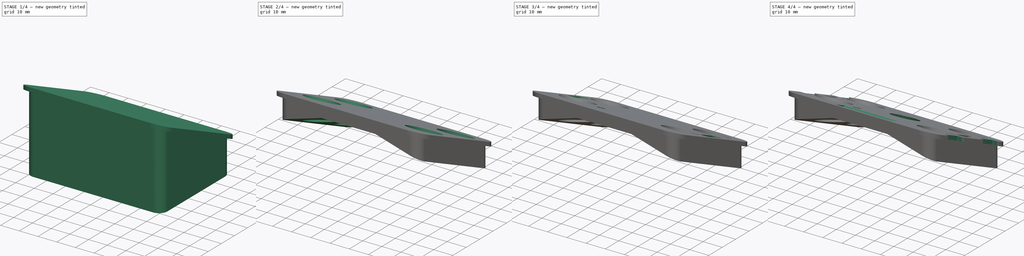
[diagram: build sequence overview — one tinted view per stage of 4, left to right]
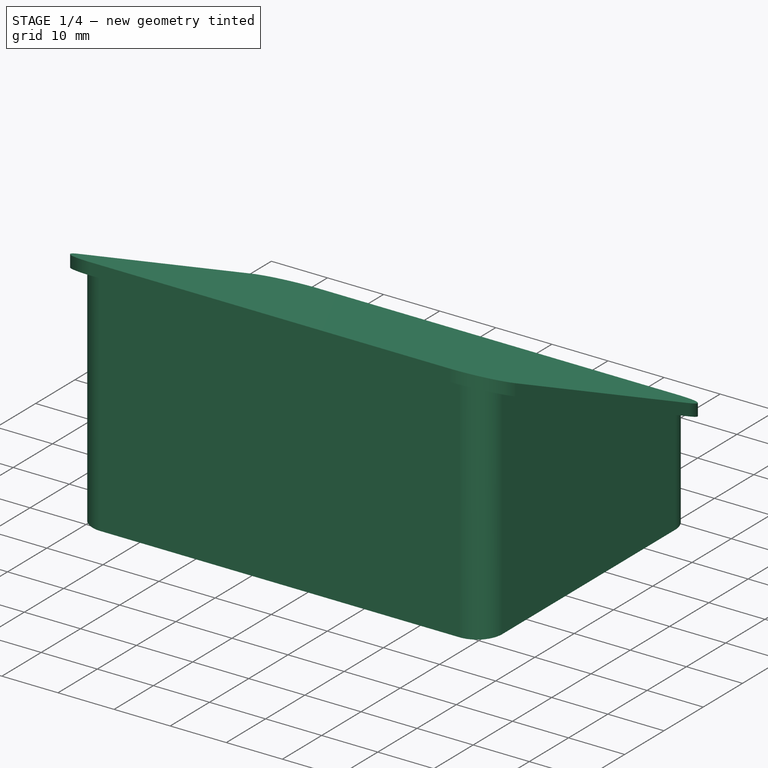
[diagram: stage 1 of 4 — iso view after this stage's code; geometry added in this stage tinted green]
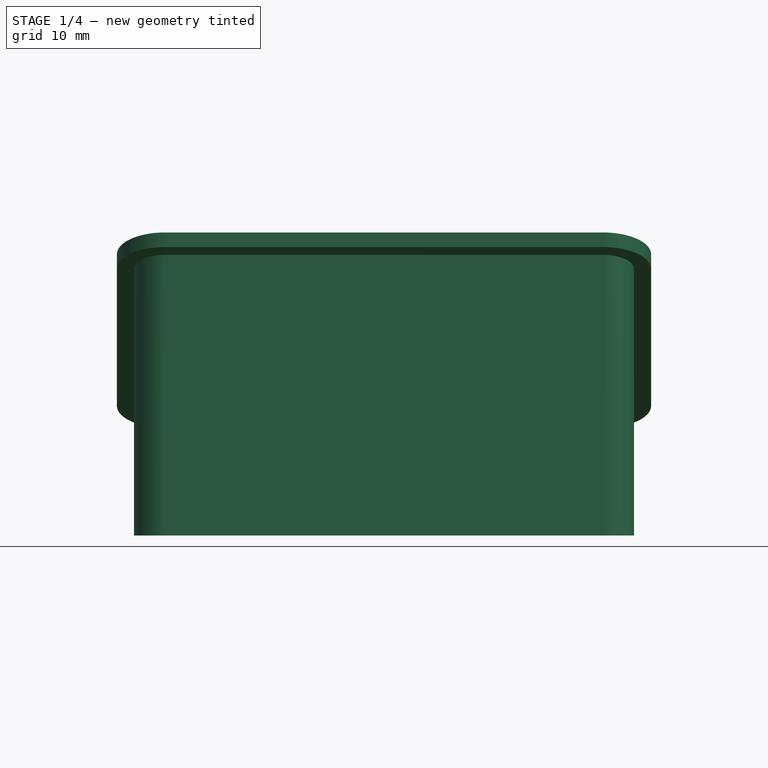
[diagram: stage 1 of 4 — front view after this stage's code; geometry added in this stage tinted green]
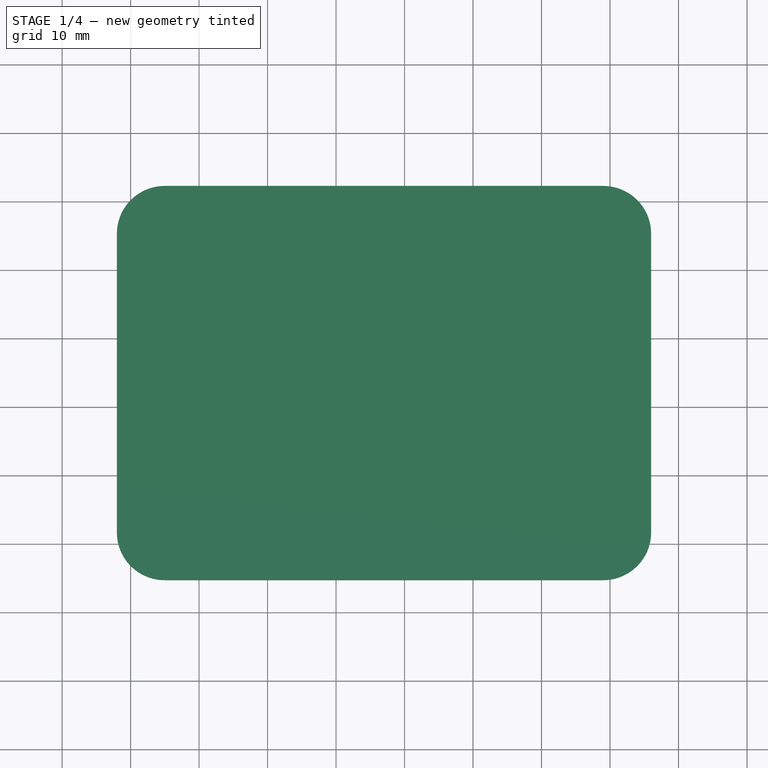
[diagram: stage 1 of 4 — top view after this stage's code; geometry added in this stage tinted green]
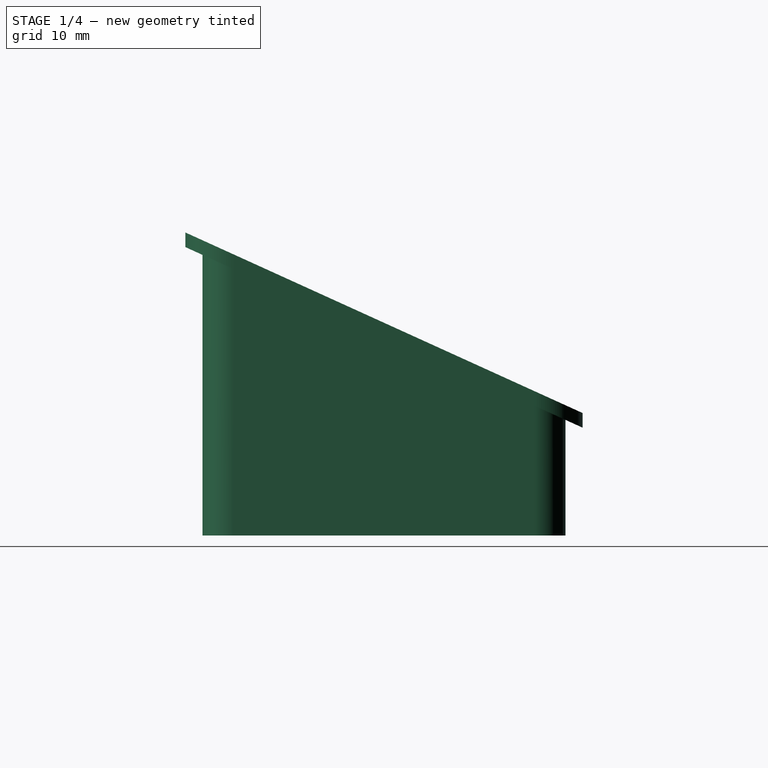
[diagram: stage 1 of 4 — right view after this stage's code; geometry added in this stage tinted green]
FCSTD DOCUMENT  (FreeCAD 0.18R4 (GitTag))
Label: sensormount_esp32_cam
License: CreativeCommons Attribution-NonCommercial
LicenseURL: http://creativecommons.org/licenses/by-nc/4.0/
objects: Sketcher::SketchObject×15, PartDesign::Pocket×9, PartDesign::Pad×2, PartDesign::SubtractiveLoft×2, PartDesign::Plane×1, PartDesign::Fillet×1, PartDesign::Body×1, App::Part×1
note: 44 computed .brp shape members not serialized (recipe doc carries the construction recipe); baked Part::Feature solids carry a one-line shape summary decoded from their .brp

FEATURE [Sketcher::SketchObject] Sketch319
  MapMode = 5
  Support = -> [XY_Plane126]
  sketch-geometry (8):
    g0: ArcOfCircle CenterX=25 CenterY=11 CenterZ=0 NormalX=0 NormalY=0 NormalZ=1 AngleXU=0 Radius=4.5 StartAngle=3.14159 EndAngle=4.71239
    g1: ArcOfCircle CenterX=25 CenterY=55 CenterZ=0 NormalX=0 NormalY=0 NormalZ=1 AngleXU=0 Radius=4.5 StartAngle=1.5708 EndAngle=3.14159
    g2: ArcOfCircle CenterX=89 CenterY=55 CenterZ=0 NormalX=0 NormalY=0 NormalZ=1 AngleXU=0 Radius=4.5 StartAngle=7e-16 EndAngle=1.5708
    g3: ArcOfCircle CenterX=89 CenterY=11 CenterZ=0 NormalX=0 NormalY=0 NormalZ=1 AngleXU=0 Radius=4.5 StartAngle=4.71239 EndAngle=6.28319
    g4: LineSegment StartX=25 StartY=59.5 StartZ=0 EndX=89 EndY=59.5 EndZ=0
    g5: LineSegment StartX=20.5 StartY=55 StartZ=0 EndX=20.5 EndY=11 EndZ=0
    g6: LineSegment StartX=25 StartY=6.5 StartZ=0 EndX=89 EndY=6.5 EndZ=0
    g7: LineSegment StartX=93.5 StartY=11 StartZ=0 EndX=93.5 EndY=55 EndZ=0
  constraints (20):
    c: Horizontal(g4)
    c: Vertical(g5)
    c: Horizontal(g6)
    c: Vertical(g7)
    c: Equal(g1,g2)
    c: Equal(g2,g3)
    c: Equal(g3,g0)
    c: Radius(g2) = 4.5
    c: Tangent(g7,g2) = -1.5708
    c: Tangent(g1,g4) = 1.5708
    c: Tangent(g5,g1) = -1.5708
    c: Tangent(g4,g2) = 1.5708
    c: Tangent(g7,g3) = -1.5708
    c: Tangent(g6,g3) = -1.5708
    c: Tangent(g5,g0) = -1.5708
    c: Tangent(g6,g0) = -1.5708
    c: DistanceX(g4,g4) = 64
    c: DistanceY(g7,g7) = 44
    c: DistanceX(g-1,g0) = 25
    c: DistanceY(g-1,g0) = 11
FEATURE [Sketcher::SketchObject] Sketch318
  AttachmentOffset = pos=(0,0,44.25) rot=(0,0,1;0rad)
  MapMode = 5
  Placement = pos=(0,0,44.25) rot=(0,0,1;0rad)
  Support = -> [XY_Plane126]
  sketch-geometry (8):
    g0: LineSegment StartX=25 StartY=4 StartZ=0 EndX=89 EndY=4 EndZ=0
    g1: LineSegment StartX=96 StartY=11 StartZ=0 EndX=96 EndY=55 EndZ=0
    g2: LineSegment StartX=89 StartY=62 StartZ=0 EndX=25 EndY=62 EndZ=0
    g3: LineSegment StartX=18 StartY=55 StartZ=0 EndX=18 EndY=11 EndZ=0
    g4: ArcOfCircle CenterX=25 CenterY=55 CenterZ=0 NormalX=0 NormalY=0 NormalZ=1 AngleXU=0 Radius=7 StartAngle=1.5708 EndAngle=3.14159
    g5: ArcOfCircle CenterX=89 CenterY=55 CenterZ=0 NormalX=0 NormalY=0 NormalZ=1 AngleXU=0 Radius=7 StartAngle=0 EndAngle=1.5708
    g6: ArcOfCircle CenterX=89 CenterY=11 CenterZ=0 NormalX=0 NormalY=0 NormalZ=1 AngleXU=0 Radius=7 StartAngle=4.71239 EndAngle=6.28319
    g7: ArcOfCircle CenterX=25 CenterY=11 CenterZ=0 NormalX=0 NormalY=0 NormalZ=1 AngleXU=0 Radius=7 StartAngle=3.14159 EndAngle=4.71239
  constraints (20):
    c: Horizontal(g0)
    c: Horizontal(g2)
    c: Vertical(g1)
    c: Vertical(g3)
    c: Tangent(g3,g4) = -1.5708
    c: Tangent(g2,g4) = -1.5708
    c: Tangent(g2,g5) = -1.5708
    c: Tangent(g1,g5) = -1.5708
    c: Tangent(g1,g6) = -1.5708
    c: Tangent(g0,g6) = -1.5708
    c: Tangent(g0,g7) = -1.5708
    c: Tangent(g3,g7) = -1.5708
    c: Radius(g4) = 7
    c: Equal(g4,g5)
    c: Equal(g5,g6)
    c: Equal(g6,g7)
    c: DistanceX(g3,g1) = 78
    c: DistanceY(g0,g2) = 58
    c: DistanceX(g-1,g7) = 25
    c: DistanceY(g-1,g7) = 11
FEATURE [Sketcher::SketchObject] Sketch329
  AttachmentOffset = pos=(0,0,14) rot=(0,0,1;0rad)
  MapMode = 5
  Placement = pos=(0,0,14) rot=(0,0,1;0rad)
  Support = -> [XY_Plane126]
  sketch-geometry (1):
    g0: Circle CenterX=57 CenterY=38.5 CenterZ=0 NormalX=0 NormalY=0 NormalZ=1 AngleXU=0 Radius=12
  constraints (3):
    c: Radius(g0) = 12
    c: DistanceX(g-1,g0) = 57
    c: DistanceY(g-1,g0) = 38.5
FEATURE [Sketcher::SketchObject] Sketch326
  AttachmentOffset = pos=(0,0,-8) rot=(0,0,1;0rad)
  MapMode = 5
  Placement = pos=(0,8,1.8e-15) rot=(1,0,0;1.5708rad)
  Support = -> [XZ_Plane126]
  sketch-geometry (5):
    g0: LineSegment StartX=43 StartY=44.3 StartZ=0 EndX=43 EndY=39.3 EndZ=0
    g1: LineSegment StartX=43 StartY=39.3 StartZ=0 EndX=71 EndY=39.3 EndZ=0
    g2: LineSegment StartX=71 StartY=39.3 StartZ=0 EndX=71 EndY=44.3 EndZ=0
    g3: LineSegment StartX=71 StartY=44.3 StartZ=0 EndX=43 EndY=44.3 EndZ=0
    g4: LineSegment [constr] StartX=57 StartY=44.3 StartZ=0 EndX=57 EndY=39.3 EndZ=0
  constraints (15):
    c: Vertical(g0)
    c: Coincident(g0,g1)
    c: Horizontal(g1)
    c: Coincident(g1,g2)
    c: Vertical(g2)
    c: Coincident(g3,g0)
    c: Horizontal(g3)
    c: Symmetric(g0,g1,g4)
    c: DistanceX(g-1,g4) = 57
    c: DistanceY(g-1,g4) = 39.3
    c: DistanceX(g1,g1) = 28
    c: DistanceY(g0,g0) = 5
    c: Coincident(g3,g2)
    c: Perpendicular(g3,g4)
    c: PointOnObject(g4,g3)
FEATURE [Sketcher::SketchObject] Sketch324
  AttachmentOffset = pos=(0,0,28) rot=(0,0,1;0rad)
  MapMode = 5
  Placement = pos=(0,0,28) rot=(0,0,1;0rad)
  Support = -> [XY_Plane126]
  sketch-geometry (1):
    g0: Circle CenterX=45.5 CenterY=20 CenterZ=0 NormalX=0 NormalY=0 NormalZ=1 AngleXU=0 Radius=5
  constraints (3):
    c: DistanceX(g-1,g0) = 45.5
    c: DistanceY(g-1,g0) = 20
    c: Radius(g0) = 5
FEATURE [Sketcher::SketchObject] Sketch325
  AttachmentOffset = pos=(0,0,38.6) rot=(0,0,1;0rad)
  MapMode = 5
  Placement = pos=(0,0,38.6) rot=(0,0,1;0rad)
  Support = -> [XY_Plane126]
  sketch-geometry (1):
    g0: Circle CenterX=45.5 CenterY=20 CenterZ=0 NormalX=0 NormalY=0 NormalZ=1 AngleXU=0 Radius=1.25
  constraints (3):
    c: DistanceX(g-1,g0) = 45.5
    c: DistanceY(g-1,g0) = 20
    c: Radius(g0) = 1.25
FEATURE [Sketcher::SketchObject] Sketch328
  AttachmentOffset = pos=(0,0,35.1) rot=(0,0,1;0rad)
  MapMode = 5
  Placement = pos=(0,0,35.1) rot=(0,0,1;0rad)
  Support = -> [XY_Plane126]
  sketch-geometry (1):
    g0: Circle CenterX=57 CenterY=38.5 CenterZ=0 NormalX=0 NormalY=0 NormalZ=1 AngleXU=0 Radius=4
  constraints (3):
    c: Radius(g0) = 4
    c: DistanceX(g-1,g0) = 57
    c: DistanceY(g-1,g0) = 38.5
FEATURE [PartDesign::Pad] Pad125  label="Baseblock"
  Length = 28.5
  Length2 = 100
  Profile = -> Sketch318
  Reversed = true
  Type = 0
FEATURE [Sketcher::SketchObject] Sketch314
  MapMode = 5
  Placement = pos=(18,0,0) rot=(0.57735,-0.57735,-0.57735;2.0944rad)
  Support = -> [Pad125]
  sketch-geometry (6):
    g0: LineSegment StartX=-62 StartY=15.75 StartZ=0 EndX=-4 EndY=42.1137 EndZ=0
    g1: LineSegment StartX=-4 StartY=42.1137 StartZ=0 EndX=-4 EndY=15.75 EndZ=0
    g2: LineSegment StartX=-4 StartY=15.75 StartZ=0 EndX=-62 EndY=15.75 EndZ=0
    g3: LineSegment StartX=-62 StartY=17.8863 StartZ=0 EndX=-4 EndY=44.25 EndZ=0
    g4: LineSegment StartX=-4 StartY=44.25 StartZ=0 EndX=-62 EndY=44.25 EndZ=0
    g5: LineSegment StartX=-62 StartY=44.25 StartZ=0 EndX=-62 EndY=17.8863 EndZ=0
  constraints (18):
    c: Coincident(g0,g1)
    c: Vertical(g1)
    c: Coincident(g1,g2)
    c: Coincident(g2,g0)
    c: Horizontal(g2)
    c: Coincident(g3,g4)
    c: Horizontal(g4)
    c: Coincident(g4,g5)
    c: Coincident(g5,g3)
    c: Vertical(g5)
    c: Parallel(g0,g3)
    c: Vertical(g0,g3)
    c: Vertical(g3,g0)
    c: Angle(g2,g0) = 0.426628
    c: DistanceX(g4,g4) = 58
    c: DistanceY(g1,g3) = 28.5
    c: DistanceX(g1,g-1) = 4
    c: DistanceY(g-1,g1) = 15.75
FEATURE [PartDesign::Pocket] Pocket148  label="Tilt Baseplate"
  BaseFeature = -> Pad125
  Length = 80
  Length2 = 100
  Profile = -> Sketch314
  Type = 0
FEATURE [PartDesign::Pad] Pad124  label="Extend Baseplate"
  BaseFeature = -> Pocket148
  Length = 44
  Length2 = 100
  Profile = -> Sketch319
  Type = 0
FEATURE [Sketcher::SketchObject] Sketch313
  ExternalGeometry = -> [Pad124]
  MapMode = 5
  Placement = pos=(93.5,0,0) rot=(0.57735,0.57735,0.57735;2.0944rad)
  Support = -> [Pad124]
  sketch-geometry (4):
    g0: LineSegment StartX=6.5 StartY=43.1136 StartZ=0 EndX=59.5 EndY=19.0227 EndZ=0
    g1: LineSegment StartX=59.5 StartY=19.0227 StartZ=0 EndX=59.5 EndY=44 EndZ=0
    g2: LineSegment StartX=59.5 StartY=44 StartZ=0 EndX=6.5 EndY=44 EndZ=0
    g3: LineSegment StartX=6.5 StartY=44 StartZ=0 EndX=6.5 EndY=43.1136 EndZ=0
  constraints (10):
    c: Coincident(g0,g1)
    c: Vertical(g1)
    c: Coincident(g1,g2)
    c: Horizontal(g2)
    c: Coincident(g2,g3)
    c: Coincident(g3,g0)
    c: Parallel(g0,g-3)
    c: DistanceX(g2,g2) = 53
    c: Coincident(g2,g-4)
    c: Coincident(g0,g-4)
FEATURE [PartDesign::Pocket] Pocket149  label="Remove Baseplate"
  BaseFeature = -> Pad124
  Length = 80
  Length2 = 100
  Profile = -> Sketch313
  Type = 0
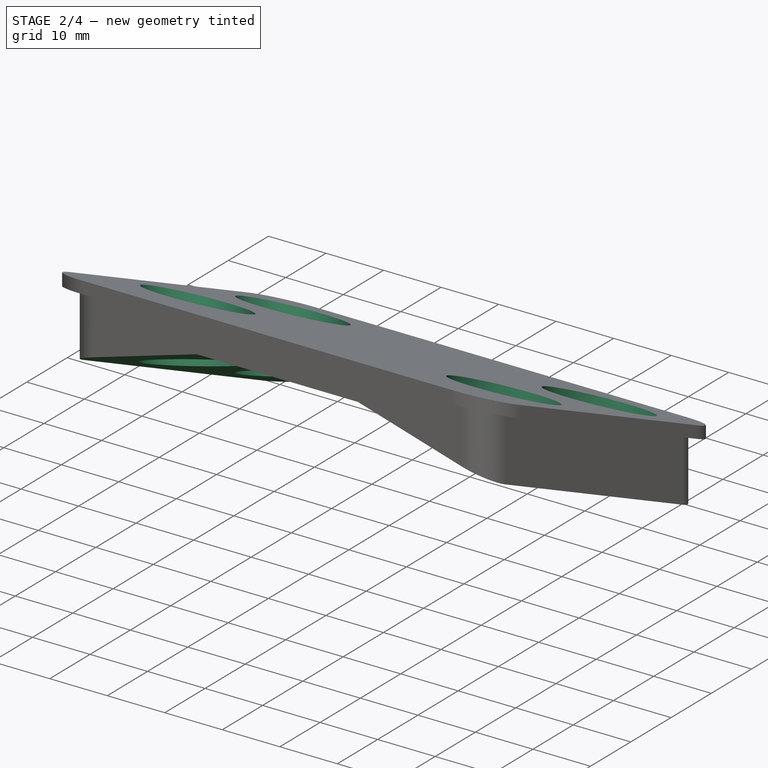
[diagram: stage 2 of 4 — iso view after this stage's code; geometry added in this stage tinted green]
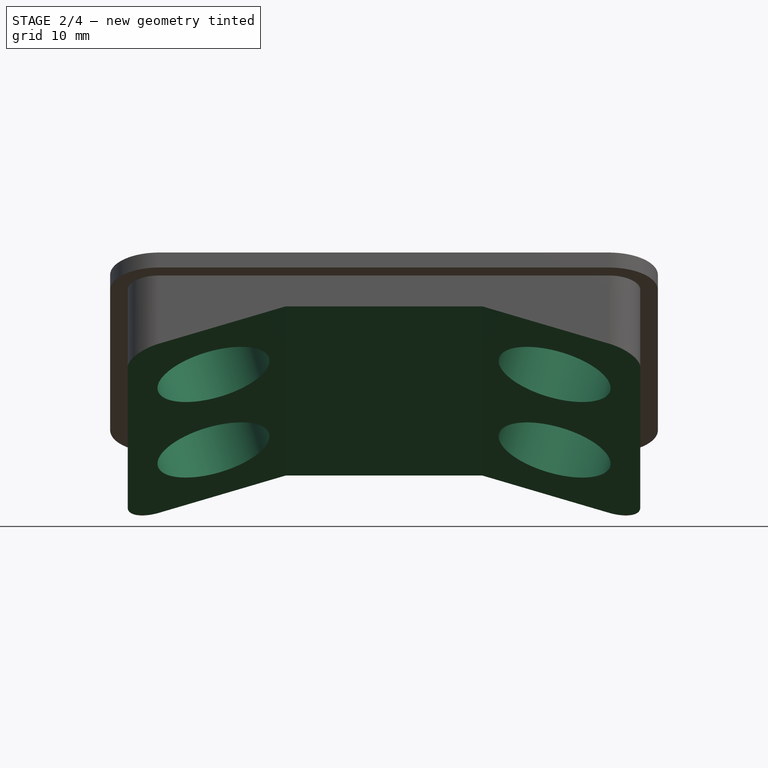
[diagram: stage 2 of 4 — front view after this stage's code; geometry added in this stage tinted green]
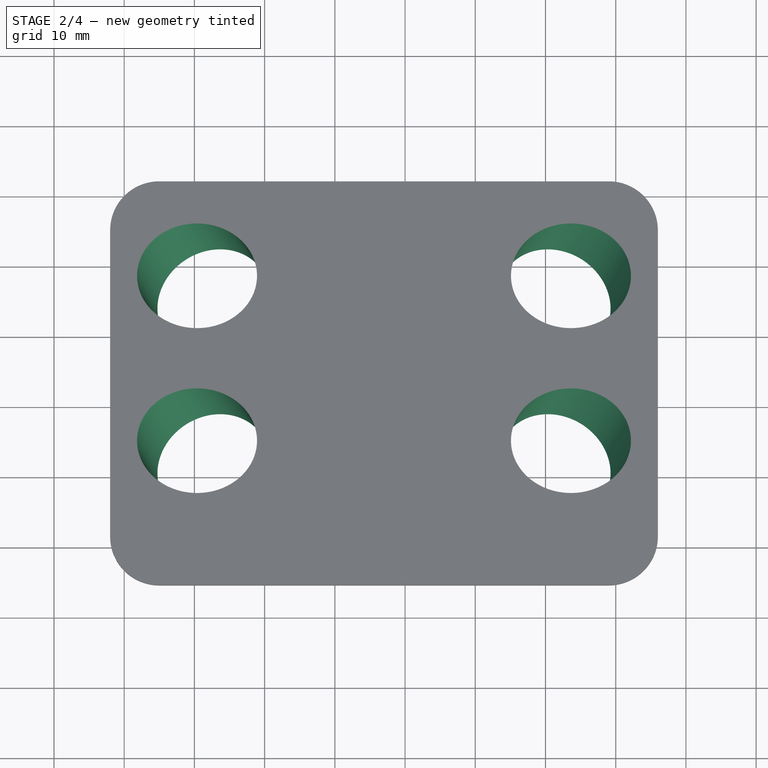
[diagram: stage 2 of 4 — top view after this stage's code; geometry added in this stage tinted green]
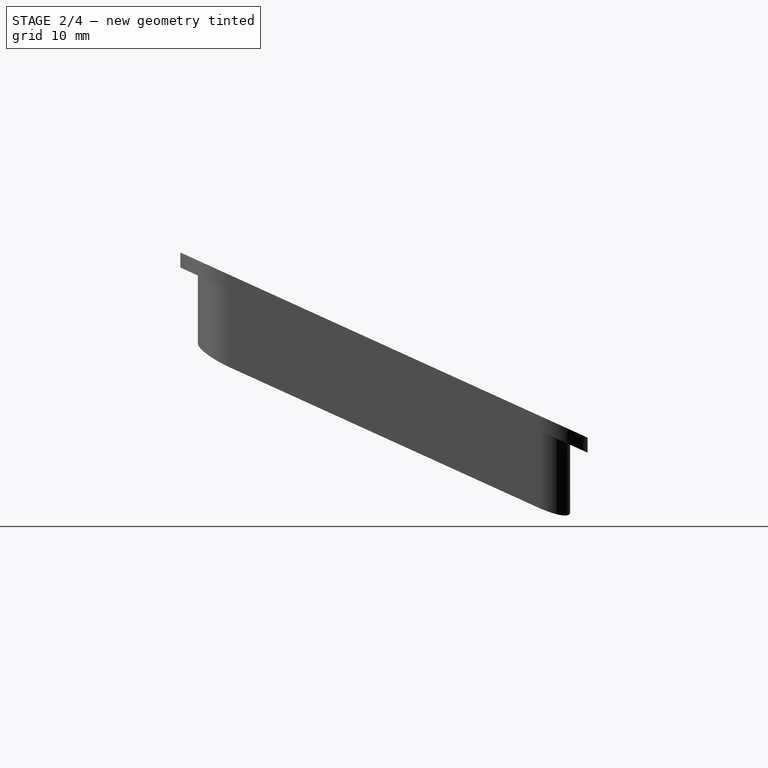
[diagram: stage 2 of 4 — right view after this stage's code; geometry added in this stage tinted green]
FEATURE [PartDesign::Plane] DatumPlane013  label="Plane along tilt"
  Length = 124.323
  MapMode = 7
  Placement = pos=(96,11,38.9319) rot=(1,0,0;1.14417rad)
  ResizeMode = 0
  Support = -> [Pocket149]
  Width = 97.5041
FEATURE [Sketcher::SketchObject] Sketch321
  MapMode = 5
  Placement = pos=(96,11,38.9319) rot=(1,0,0;1.14417rad)
  Support = -> [DatumPlane013]
  sketch-geometry (6):
    g0: LineSegment StartX=-75.5 StartY=-10.0289 StartZ=0 EndX=-53 EndY=-4 EndZ=0
    g1: LineSegment StartX=-53 StartY=-4 StartZ=0 EndX=-25 EndY=-4 EndZ=0
    g2: LineSegment StartX=-25 StartY=-4 StartZ=0 EndX=-2.5 EndY=-10.0289 EndZ=0
    g3: LineSegment StartX=-2.5 StartY=-10.0289 StartZ=0 EndX=-2.5 EndY=-38 EndZ=0
    g4: LineSegment StartX=-2.5 StartY=-38 StartZ=0 EndX=-75.5 EndY=-38 EndZ=0
    g5: LineSegment StartX=-75.5 StartY=-38 StartZ=0 EndX=-75.5 EndY=-10.0289 EndZ=0
  constraints (18):
    c: Coincident(g0,g1)
    c: Horizontal(g1)
    c: Coincident(g1,g2)
    c: Coincident(g2,g3)
    c: Vertical(g3)
    c: Coincident(g3,g4)
    c: Horizontal(g4)
    c: Coincident(g4,g5)
    c: Coincident(g5,g0)
    c: Vertical(g5)
    c: DistanceX(g4,g4) = 73
    c: DistanceX(g2,g-1) = 2.5
    c: Equal(g2,g0)
    c: Angle(g5,g0) = 1.8326
    c: Equal(g5,g3)
    c: DistanceY(g3,g-1) = 38
    c: DistanceX(g1,g1) = 28
    c: DistanceY(g1,g-1) = 4
FEATURE [PartDesign::Pocket] Pocket153  label="Tilt Sensors"
  BaseFeature = -> Pocket149
  Length = 65
  Length2 = 100
  Profile = -> Sketch321
  Type = 4
FEATURE [Sketcher::SketchObject] Sketch320
  ExternalGeometry = -> [Pocket153]
  MapMode = 5
  Placement = pos=(-6.11807,9.44836,20.7863) rot=(0.991049,0.028262,0.130474;2.71867rad)
  Support = -> [Pocket153]
  sketch-geometry (8):
    g0: LineSegment [constr] StartX=50.8508 StartY=9.221 StartZ=0 EndX=50.8508 EndY=-19.8882 EndZ=0
    g1: LineSegment [constr] StartX=50.8508 StartY=-19.8882 StartZ=0 EndX=50.8508 EndY=-48.9973 EndZ=0
    g2: Circle CenterX=40.1943 CenterY=-8.14185 CenterZ=0 NormalX=0 NormalY=0 NormalZ=1 AngleXU=0 Radius=8.25
    g3: Circle CenterX=40.1943 CenterY=-34.1419 CenterZ=0 NormalX=0 NormalY=0 NormalZ=1 AngleXU=0 Radius=8.25
    g4: LineSegment [constr] StartX=40.1943 StartY=-8.14185 StartZ=0 EndX=40.1943 EndY=-21.1419 EndZ=0
    g5: LineSegment [constr] StartX=40.1943 StartY=-21.1419 StartZ=0 EndX=40.1943 EndY=-34.1419 EndZ=0
    g6: LineSegment [constr] StartX=50.8508 StartY=-19.8882 StartZ=0 EndX=40.1943 EndY=-21.1419 EndZ=0
    g7: LineSegment [constr] StartX=40.1943 StartY=-21.1419 StartZ=0 EndX=27.5571 EndY=-22.6286 EndZ=0
  constraints (21):
    c: Coincident(g0,g-3)
    c: Vertical(g0)
    c: Coincident(g1,g-4)
    c: Equal(g1,g0)
    c: Radius(g2) = 8.25
    c: Equal(g3,g2)
    c: Coincident(g4,g2)
    c: Coincident(g5,g4)
    c: Coincident(g5,g3)
    c: Vertical(g5)
    c: Vertical(g4)
    c: Equal(g5,g4)
    c: DistanceY(g3,g2) = 26
    c: Coincident(g6,g0)
    c: Coincident(g6,g4)
    c: Coincident(g7,g4)
    c: Tangent(g7,g6)
    c: Parallel(g6,g-3)
    c: Coincident(g0,g1)
    c: PointOnObject(g7,g-5)
    c: Distance(g6) = 10.73
FEATURE [PartDesign::Pocket] Pocket152  label="Left Ultrasonic Sensor Holes"
  BaseFeature = -> Pocket153
  Length = 15
  Length2 = 100
  Profile = -> Sketch320
  Type = 0
FEATURE [Sketcher::SketchObject] Sketch316
  ExternalGeometry = -> [Pocket152]
  MapMode = 5
  Placement = pos=(13.7546,21.2418,46.7318) rot=(0.991049,-0.028262,-0.130474;2.71867rad)
  Support = -> [Pocket152]
  sketch-geometry (8):
    g0: LineSegment [constr] StartX=59.2648 StartY=9.221 StartZ=0 EndX=59.2648 EndY=-19.8882 EndZ=0
    g1: LineSegment [constr] StartX=59.2648 StartY=-19.8882 StartZ=0 EndX=59.2648 EndY=-48.9973 EndZ=0
    g2: LineSegment [constr] StartX=59.2648 StartY=-19.8882 StartZ=0 EndX=69.9213 EndY=-21.1419 EndZ=0
    g3: LineSegment [constr] StartX=69.9213 StartY=-21.1419 StartZ=0 EndX=82.5585 EndY=-22.6286 EndZ=0
    g4: LineSegment [constr] StartX=69.9213 StartY=-21.1419 StartZ=0 EndX=69.9213 EndY=-8.14185 EndZ=0
    g5: LineSegment [constr] StartX=69.9213 StartY=-21.1419 StartZ=0 EndX=69.9213 EndY=-34.1419 EndZ=0
    g6: Circle CenterX=69.9213 CenterY=-8.14185 CenterZ=0 NormalX=0 NormalY=0 NormalZ=1 AngleXU=0 Radius=8.25
    g7: Circle CenterX=69.9213 CenterY=-34.1419 CenterZ=0 NormalX=0 NormalY=0 NormalZ=1 AngleXU=0 Radius=8.25
  constraints (21):
    c: Coincident(g0,g-3)
    c: Vertical(g0)
    c: Coincident(g1,g0)
    c: Coincident(g1,g-4)
    c: Coincident(g2,g0)
    c: Coincident(g4,g2)
    c: Vertical(g4)
    c: Coincident(g5,g2)
    c: Vertical(g5)
    c: Tangent(g3,g2) = -1.5708
    c: Equal(g0,g1)
    c: Equal(g4,g5)
    c: Parallel(g3,g-3)
    c: Equal(g4,g5)
    c: PointOnObject(g3,g-5)
    c: Coincident(g6,g4)
    c: Coincident(g7,g5)
    c: Radius(g7) = 8.25
    c: Equal(g7,g6)
    c: DistanceY(g7,g6) = 26
    c: Distance(g2) = 10.73
FEATURE [PartDesign::Pocket] Pocket147  label="Right Ultrasonic Sensor Holes"
  BaseFeature = -> Pocket152
  Length = 19
  Length2 = 100
  Profile = -> Sketch316
  Type = 0
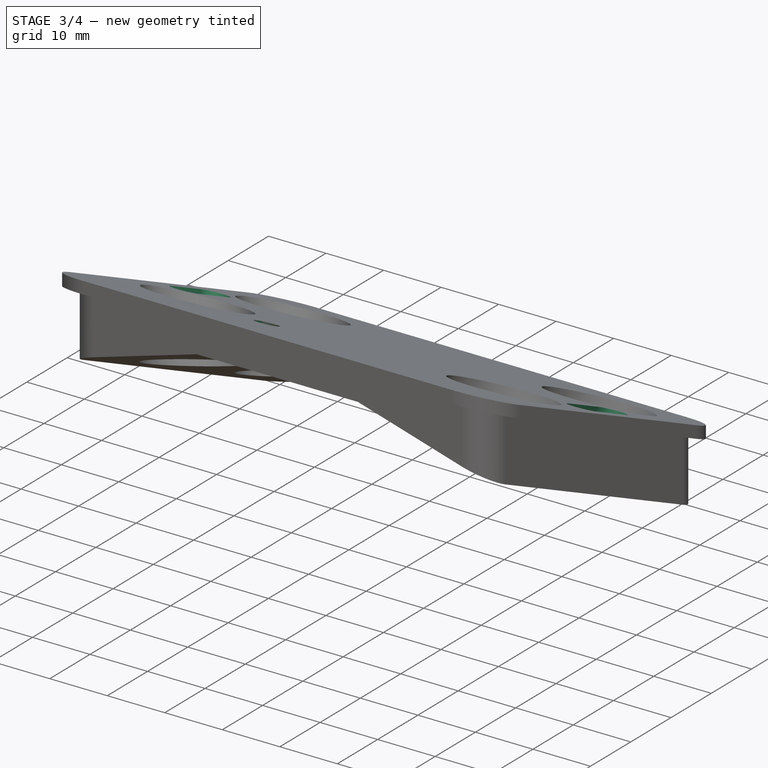
[diagram: stage 3 of 4 — iso view after this stage's code; geometry added in this stage tinted green]
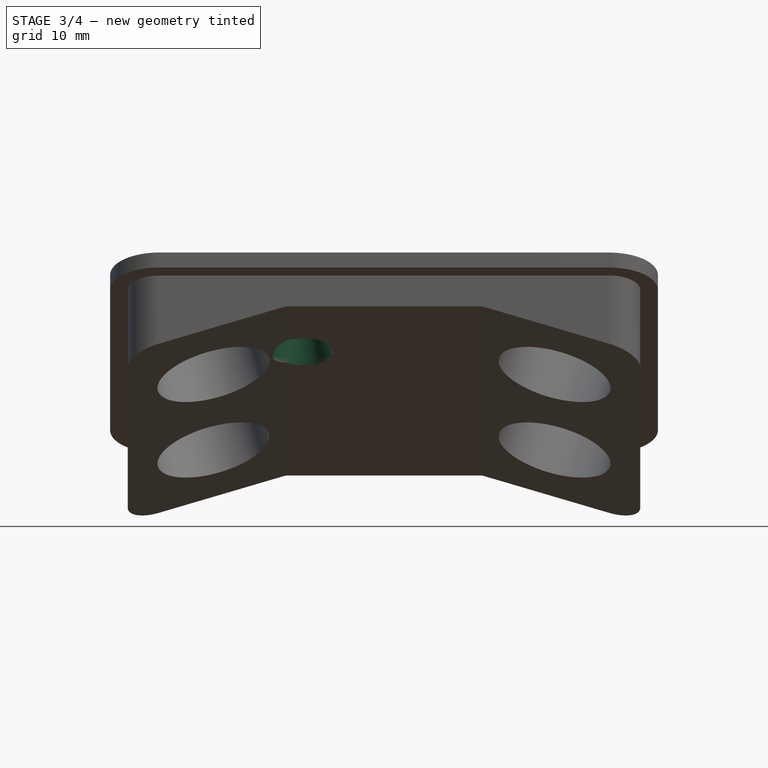
[diagram: stage 3 of 4 — front view after this stage's code; geometry added in this stage tinted green]
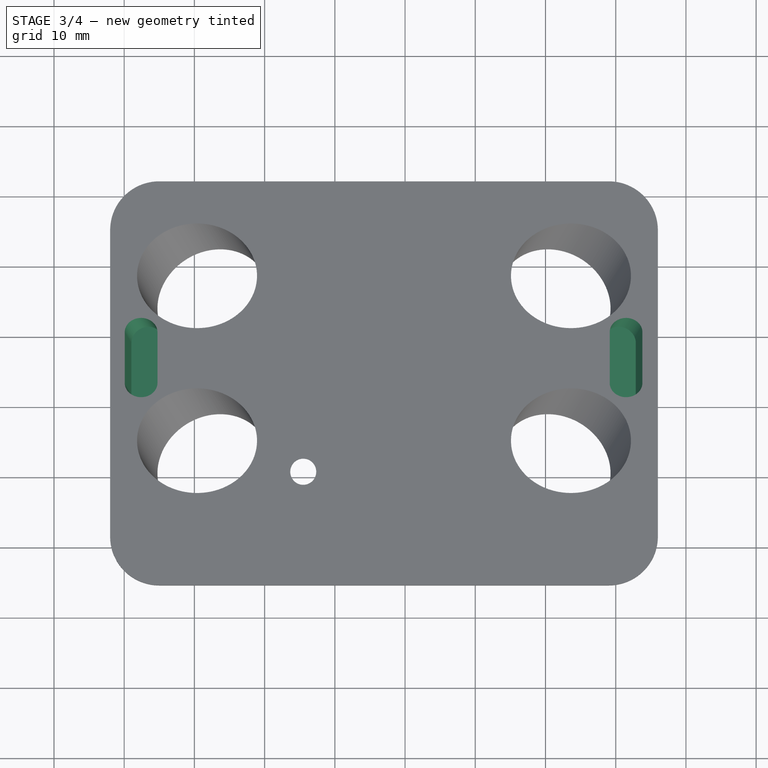
[diagram: stage 3 of 4 — top view after this stage's code; geometry added in this stage tinted green]
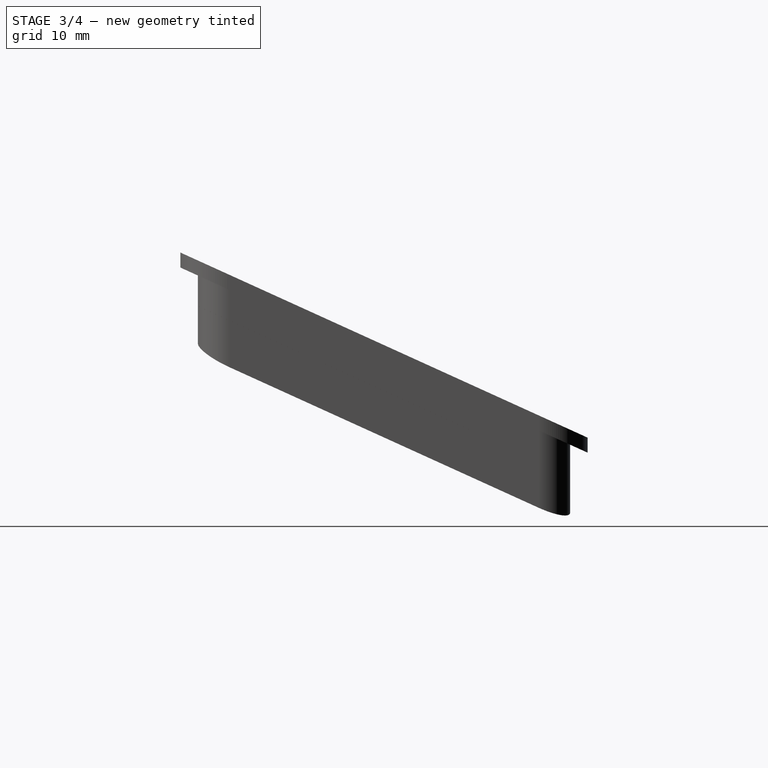
[diagram: stage 3 of 4 — right view after this stage's code; geometry added in this stage tinted green]
FEATURE [Sketcher::SketchObject] Sketch323
  AttachmentOffset = pos=(0,0,-8) rot=(0,0,1;0rad)
  MapMode = 5
  Placement = pos=(-8.18862,12.646,27.8211) rot=(0.991049,0.028262,0.130474;2.71867rad)
  Support = -> [Pocket147]
  sketch-geometry (4):
    g0: ArcOfCircle CenterX=32.5 CenterY=-25.25 CenterZ=0 NormalX=0 NormalY=0 NormalZ=1 AngleXU=0 Radius=2.25 StartAngle=3.14159 EndAngle=6.28319
    g1: ArcOfCircle CenterX=32.5 CenterY=-17.25 CenterZ=0 NormalX=0 NormalY=0 NormalZ=1 AngleXU=0 Radius=2.25 StartAngle=4e-16 EndAngle=3.14159
    g2: LineSegment StartX=34.75 StartY=-25.25 StartZ=0 EndX=34.75 EndY=-17.25 EndZ=0
    g3: LineSegment StartX=30.25 StartY=-25.25 StartZ=0 EndX=30.25 EndY=-17.25 EndZ=0
  constraints (10):
    c: Tangent(g0,g3) = 1.5708
    c: Tangent(g0,g2) = -1.5708
    c: Tangent(g2,g1) = -1.5708
    c: Tangent(g3,g1) = 1.5708
    c: Vertical(g2)
    c: Equal(g0,g1)
    c: Radius(g1) = 2.25
    c: DistanceY(g0,g1) = 8
    c: DistanceX(g-1,g1) = 32.5
    c: DistanceY(g1,g-1) = 17.25
FEATURE [PartDesign::Pocket] Pocket146  label="Left Ultrasonic Sensor Clock"
  BaseFeature = -> Pocket147
  Length = 14
  Length2 = 100
  Profile = -> Sketch323
  Type = 0
FEATURE [Sketcher::SketchObject] Sketch315
  AttachmentOffset = pos=(0,0,-8) rot=(0,0,1;0rad)
  MapMode = 5
  Placement = pos=(15.8252,24.4394,53.7665) rot=(0.991049,-0.028262,-0.130474;2.71867rad)
  Support = -> [Pocket146]
  sketch-geometry (4):
    g0: ArcOfCircle CenterX=77.5 CenterY=-25.25 CenterZ=0 NormalX=0 NormalY=0 NormalZ=1 AngleXU=0 Radius=2.25 StartAngle=3.14159 EndAngle=6.28319
    g1: ArcOfCircle CenterX=77.5 CenterY=-17.25 CenterZ=0 NormalX=0 NormalY=0 NormalZ=1 AngleXU=0 Radius=2.25 StartAngle=0 EndAngle=3.14159
    g2: LineSegment StartX=79.75 StartY=-25.25 StartZ=0 EndX=79.75 EndY=-17.25 EndZ=0
    g3: LineSegment StartX=75.25 StartY=-25.25 StartZ=0 EndX=75.25 EndY=-17.25 EndZ=0
  constraints (10):
    c: Tangent(g0,g3) = 1.5708
    c: Tangent(g0,g2) = -1.5708
    c: Tangent(g2,g1) = -1.5708
    c: Tangent(g3,g1) = 1.5708
    c: Vertical(g2)
    c: Equal(g0,g1)
    c: Radius(g1) = 2.25
    c: DistanceY(g0,g1) = 8
    c: DistanceY(g1,g-1) = 17.25
    c: DistanceX(g-1,g1) = 77.5
FEATURE [PartDesign::Pocket] Pocket154  label="Right Ultrasonic Sensor Clock"
  BaseFeature = -> Pocket146
  Length = 12
  Length2 = 100
  Profile = -> Sketch315
  Type = 0
FEATURE [PartDesign::SubtractiveLoft] SubtractiveLoft  label="Flashlight Loft"
  BaseFeature = -> Pocket154
  Closed = false
  Profile = -> Sketch324
  Ruled = false
  Sections = -> [Sketch325]
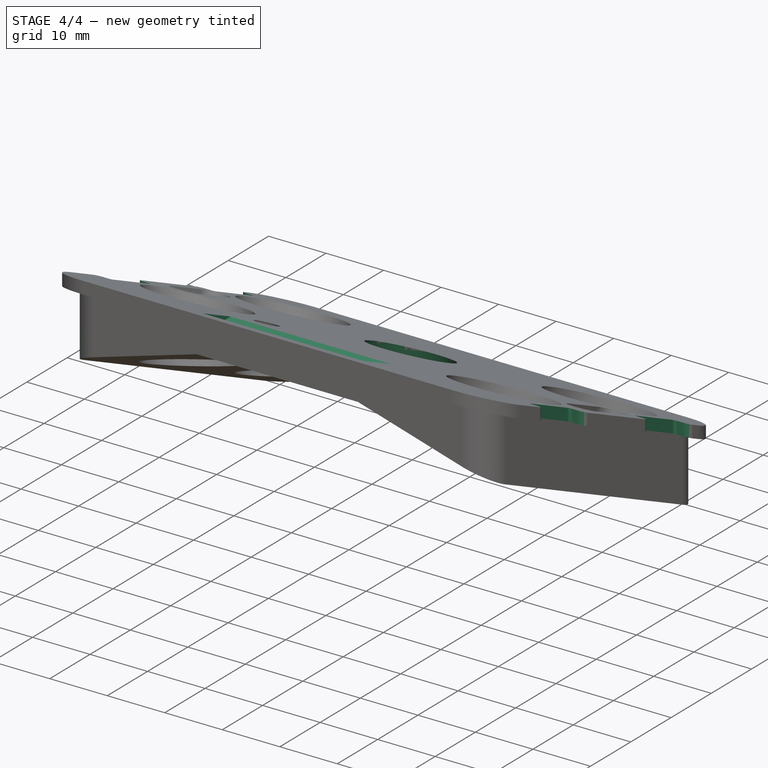
[diagram: stage 4 of 4 — iso view after this stage's code; geometry added in this stage tinted green]
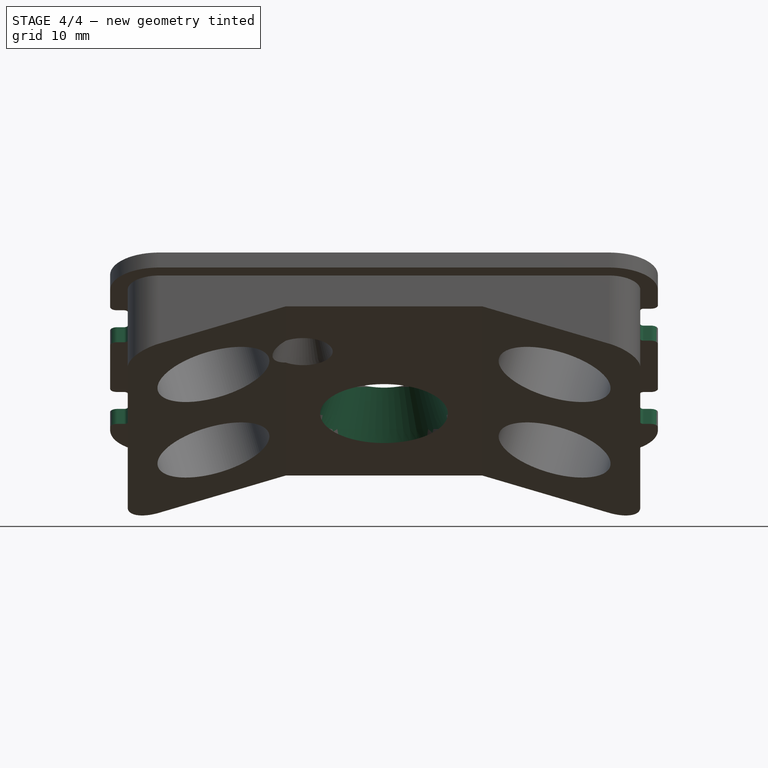
[diagram: stage 4 of 4 — front view after this stage's code; geometry added in this stage tinted green]
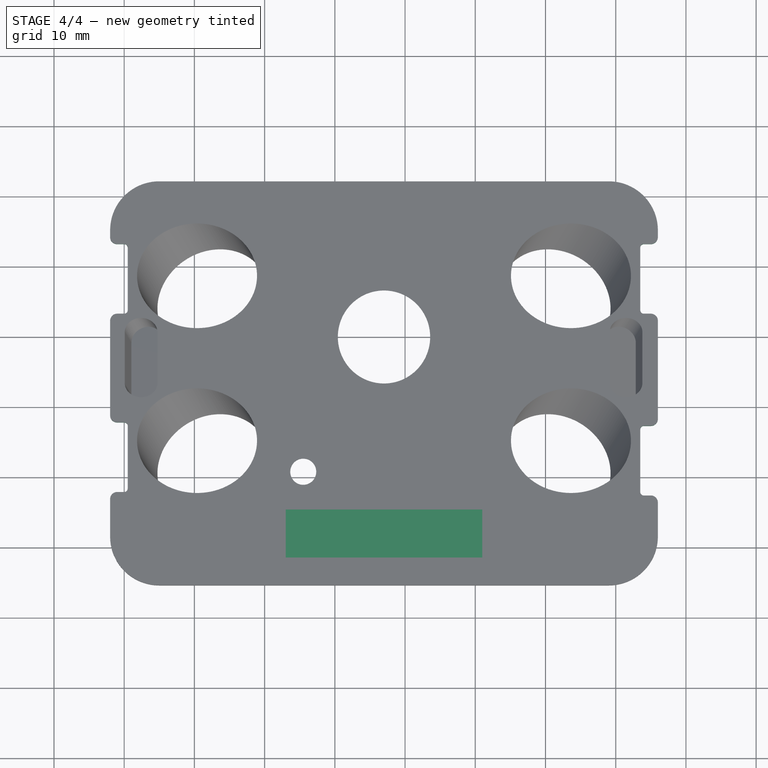
[diagram: stage 4 of 4 — top view after this stage's code; geometry added in this stage tinted green]
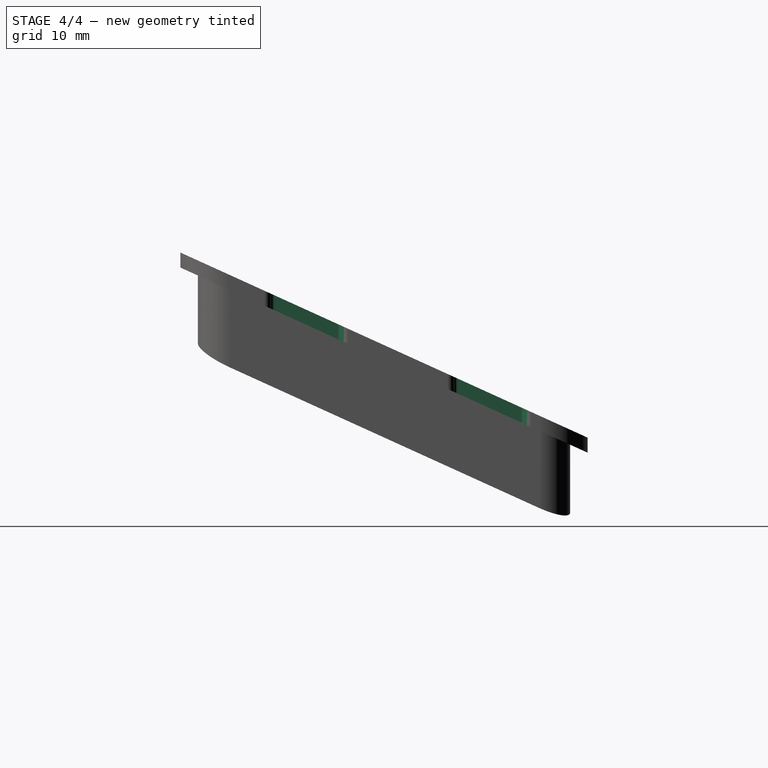
[diagram: stage 4 of 4 — right view after this stage's code; geometry added in this stage tinted green]
FEATURE [PartDesign::Pocket] Pocket155  label="ESP32-CAM Pocket"
  BaseFeature = -> SubtractiveLoft
  Length = 29
  Length2 = 100
  Profile = -> Sketch326
  Type = 0
FEATURE [PartDesign::SubtractiveLoft] SubtractiveLoft001  label="ESP32-CAM Loft"
  BaseFeature = -> Pocket155
  Closed = false
  Profile = -> Sketch328
  Ruled = false
  Sections = -> [Sketch329]
FEATURE [Sketcher::SketchObject] Sketch
  MapMode = 5
  Support = -> [XY_Plane126]
  sketch-geometry (24):
    g0: LineSegment StartX=18 StartY=17.4 StartZ=0 EndX=20 EndY=17.4 EndZ=0
    g1: LineSegment StartX=20.5 StartY=17.9 StartZ=0 EndX=20.5 EndY=26.9 EndZ=0
    g2: LineSegment StartX=20 StartY=27.4 StartZ=0 EndX=18 EndY=27.4 EndZ=0
    g3: LineSegment StartX=18 StartY=27.4 StartZ=0 EndX=18 EndY=17.4 EndZ=0
    g4: LineSegment StartX=18 StartY=43 StartZ=0 EndX=20 EndY=43 EndZ=0
    g5: LineSegment StartX=20.5 StartY=43.5 StartZ=0 EndX=20.5 EndY=52.5 EndZ=0
    g6: LineSegment StartX=20 StartY=53 StartZ=0 EndX=18 EndY=53 EndZ=0
    g7: LineSegment StartX=18 StartY=53 StartZ=0 EndX=18 EndY=43 EndZ=0
    g8: LineSegment StartX=94 StartY=43 StartZ=0 EndX=96 EndY=43 EndZ=0
    g9: LineSegment StartX=96 StartY=43 StartZ=0 EndX=96 EndY=53 EndZ=0
    g10: LineSegment StartX=96 StartY=53 StartZ=0 EndX=94 EndY=53 EndZ=0
    g11: LineSegment StartX=93.5 StartY=52.5 StartZ=0 EndX=93.5 EndY=43.5 EndZ=0
    g12: LineSegment StartX=94 StartY=16.9 StartZ=0 EndX=96 EndY=16.9 EndZ=0
    g13: LineSegment StartX=96 StartY=16.9 StartZ=0 EndX=96 EndY=26.9 EndZ=0
    g14: LineSegment StartX=96 StartY=26.9 StartZ=0 EndX=94 EndY=26.9 EndZ=0
    g15: LineSegment StartX=93.5 StartY=26.4 StartZ=0 EndX=93.5 EndY=17.4 EndZ=0
    g16: ArcOfCircle CenterX=20 CenterY=52.5 CenterZ=0 NormalX=0 NormalY=0 NormalZ=1 AngleXU=0 Radius=0.5 StartAngle=-3.6e-15 EndAngle=1.5708
    g17: ArcOfCircle CenterX=20 CenterY=43.5 CenterZ=0 NormalX=0 NormalY=0 NormalZ=1 AngleXU=0 Radius=0.5 StartAngle=4.71239 EndAngle=6.28319
    g18: ArcOfCircle CenterX=20 CenterY=26.9 CenterZ=0 NormalX=0 NormalY=0 NormalZ=1 AngleXU=0 Radius=0.5 StartAngle=-9e-16 EndAngle=1.5708
    g19: ArcOfCircle CenterX=20 CenterY=17.9 CenterZ=0 NormalX=0 NormalY=0 NormalZ=1 AngleXU=0 Radius=0.5 StartAngle=4.71239 EndAngle=6.28319
    g20: ArcOfCircle CenterX=94 CenterY=17.4 CenterZ=0 NormalX=0 NormalY=0 NormalZ=1 AngleXU=0 Radius=0.5 StartAngle=3.14159 EndAngle=4.71239
    g21: ArcOfCircle CenterX=94 CenterY=26.4 CenterZ=0 NormalX=0 NormalY=0 NormalZ=1 AngleXU=0 Radius=0.5 StartAngle=1.5708 EndAngle=3.14159
    g22: ArcOfCircle CenterX=94 CenterY=43.5 CenterZ=0 NormalX=0 NormalY=0 NormalZ=1 AngleXU=0 Radius=0.5 StartAngle=3.14159 EndAngle=4.71239
    g23: ArcOfCircle CenterX=94 CenterY=52.5 CenterZ=0 NormalX=0 NormalY=0 NormalZ=1 AngleXU=0 Radius=0.5 StartAngle=1.5708 EndAngle=3.14159
  constraints (58):
    c: Coincident(g2,g3)
    c: Coincident(g3,g0)
    c: Horizontal(g0)
    c: Horizontal(g2)
    c: Vertical(g1)
    c: Vertical(g3)
    c: Coincident(g6,g7)
    c: Coincident(g7,g4)
    c: Horizontal(g4)
    c: Horizontal(g6)
    c: Vertical(g5)
    c: Vertical(g7)
    c: Coincident(g8,g9)
    c: Coincident(g9,g10)
    c: Horizontal(g8)
    c: Horizontal(g10)
    c: Vertical(g9)
    c: Vertical(g11)
    c: Coincident(g12,g13)
    c: Coincident(g13,g14)
    c: Horizontal(g12)
    c: Horizontal(g14)
    c: Vertical(g13)
    c: Vertical(g15)
    c: Equal(g6,g2)
    c: Equal(g2,g14)
    c: Equal(g14,g8)
    c: Equal(g11,g5)
    c: Equal(g5,g1)
    c: Equal(g1,g15)
    c: Vertical(g14,g8)
    c: Horizontal(g4,g8)
    c: Horizontal(g14,g1)
    c: DistanceY(g-1,g0) = 17.4
    c: DistanceX(g-1,g0) = 18
    c: DistanceY(g3,g3) = 10
    c: DistanceY(g2,g4) = 15.6
    c: Tangent(g5,g16) = -1.5708
    c: Tangent(g6,g16) = -1.5708
    c: Tangent(g4,g17) = -1.5708
    c: Tangent(g5,g17) = -1.5708
    c: Tangent(g1,g18) = -1.5708
    c: Tangent(g2,g18) = -1.5708
    c: Tangent(g0,g19) = -1.5708
    c: Tangent(g1,g19) = -1.5708
    c: Tangent(g12,g20) = -1.5708
    c: Tangent(g15,g20) = -1.5708
    c: Tangent(g14,g21) = -1.5708
    c: Tangent(g15,g21) = -1.5708
    c: Tangent(g8,g22) = -1.5708
    c: Tangent(g11,g22) = -1.5708
    c: Tangent(g10,g23) = -1.5708
    c: Tangent(g11,g23) = -1.5708
    c: Radius(g16) = 0.5
    c: Equal(g16, g17-g23) x7
    c: DistanceX(g19,g20) = 74
    c: DistanceX(g15,g13) = 2.5
    c: Vertical(g4,g2)
FEATURE [PartDesign::Pocket] Pocket  label="Cutout Sensorplate Screwholes"
  BaseFeature = -> SubtractiveLoft001
  Length = 40
  Length2 = 100
  Profile = -> Sketch
  Reversed = true
  Type = 0
FEATURE [PartDesign::Fillet] Fillet  label="Smooth Cutout Sensorplate Screwholes"
  Base = -> Pocket [Edge209,Edge187,Edge185,Edge69,Edge200,Edge180,Edge179,Edge31]
  BaseFeature = -> Pocket
  Radius = 1
FEATURE [PartDesign::Body] Body087  label="Sensormount_ESP32_CAM_Body"
  Group = -> [Sketch318,Pad125,Sketch314,Pocket148,Sketch319,Pad124,Sketch313,Pocket149,DatumPlane013,Sketch321,Pocket153,Sketch320,Pocket152,Sketch316,Pocket147,Sketch323,Pocket146,Sketch315,Pocket154,Sketch324,Sketch325,SubtractiveLoft,Sketch326,Pocket155,Sketch328,Sketch329,SubtractiveLoft001,Sketch,Pocket,Fillet]
  Origin = -> Origin127
  Placement = pos=(0,-14.4809,31.8638) rot=(1,0,0;0.426558rad)
  Tip = -> Fillet
FEATURE [App::Part] Part  label="Sensormount_ESP32_CAM"
  Group = -> [Body087]
  Origin = -> Origin
  Placement = pos=(0,0,0) rot=(0,1,0;3.14159rad)
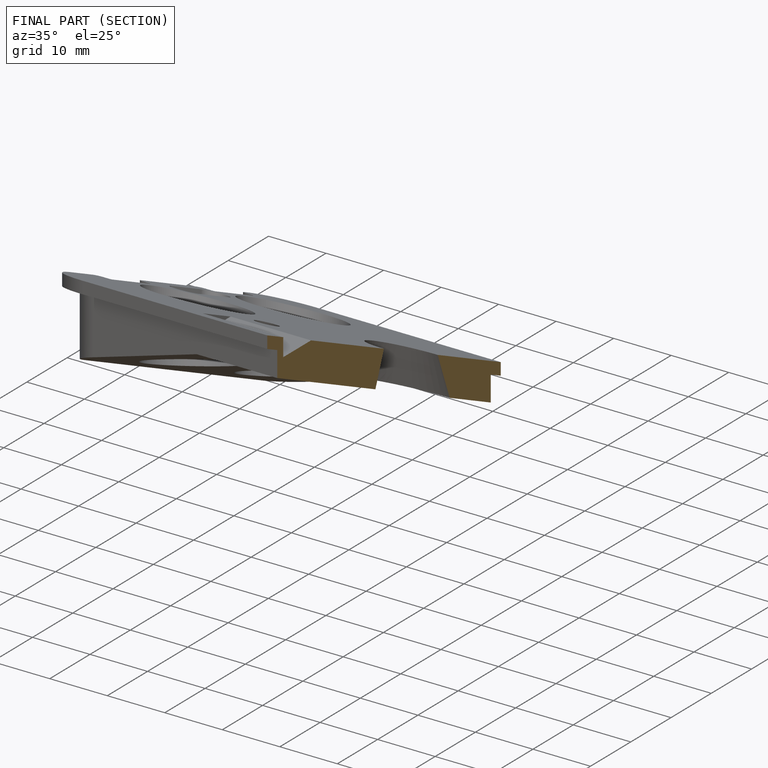
[diagram: finished part — half-section view (interior)]
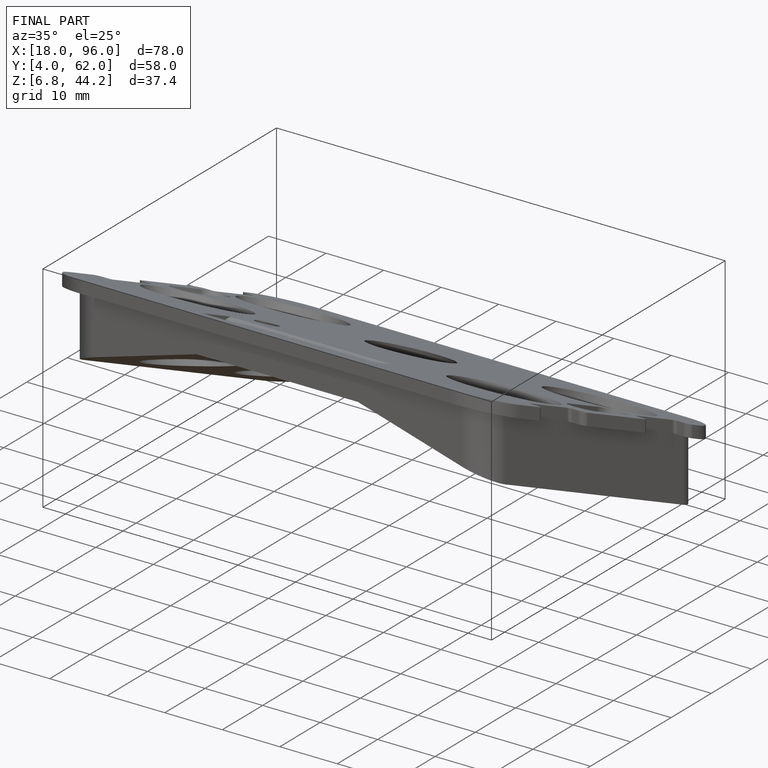
[diagram: finished part — iso view with bounding-box wireframe]
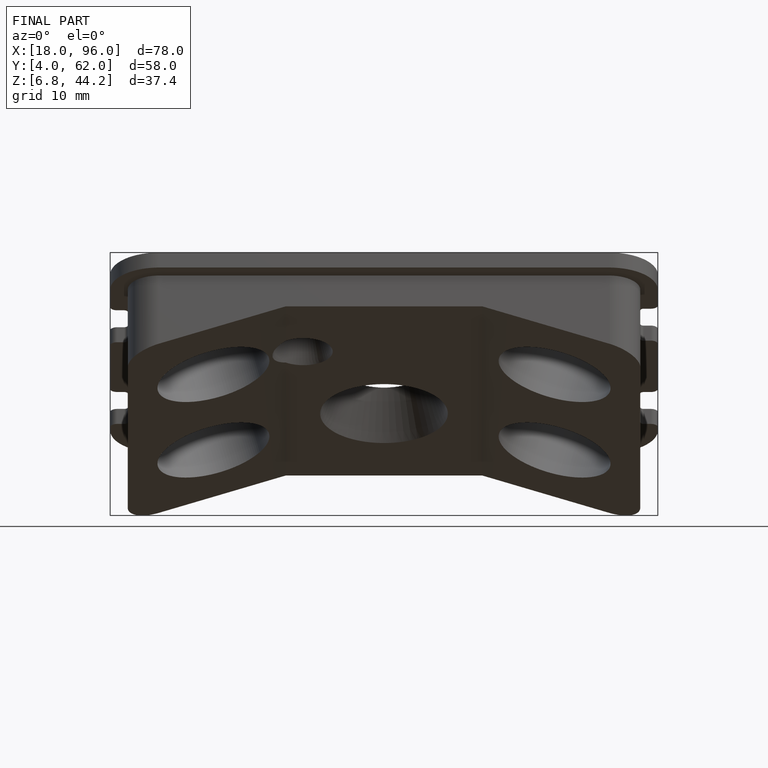
[diagram: finished part — front view with bounding-box wireframe]
